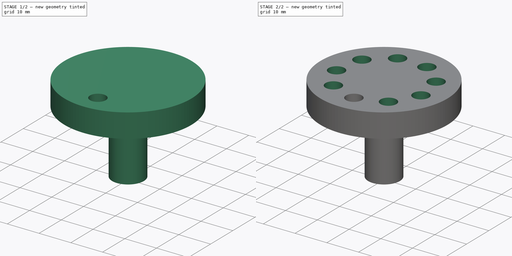
[diagram: build sequence overview — one tinted view per stage of 2, left to right]
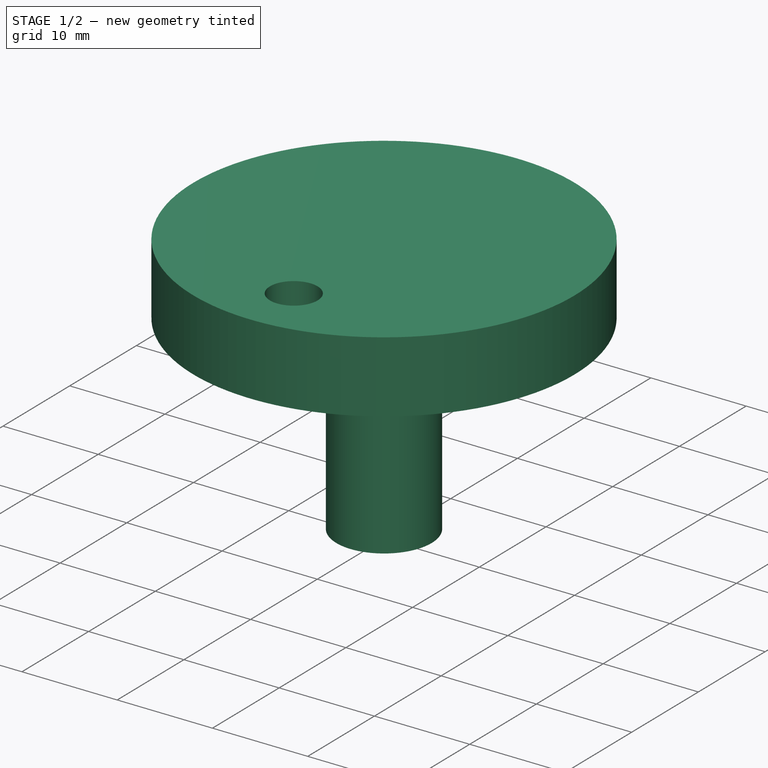
[diagram: stage 1 of 2 — iso view after this stage's code; geometry added in this stage tinted green]
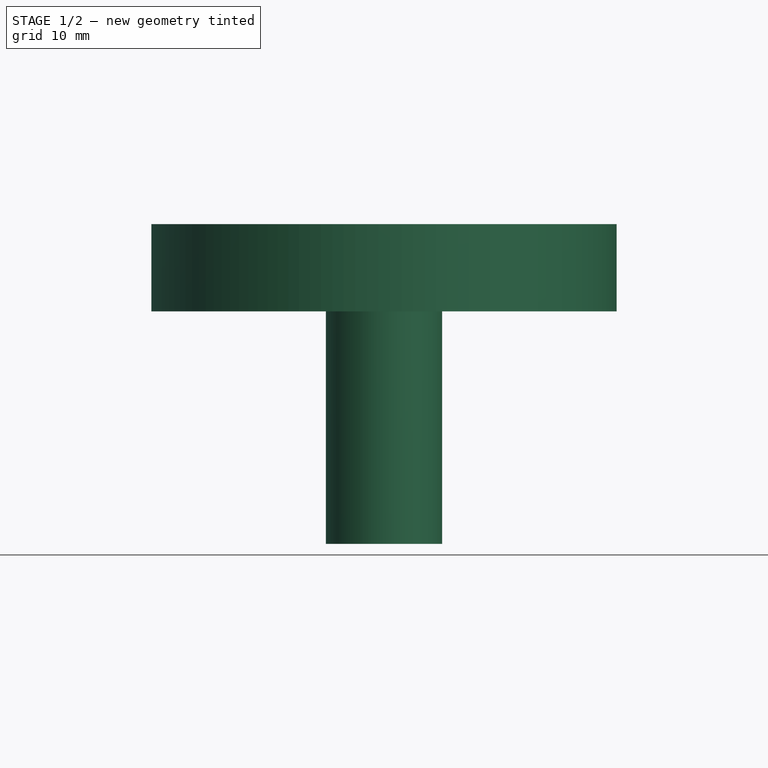
[diagram: stage 1 of 2 — front view after this stage's code; geometry added in this stage tinted green]
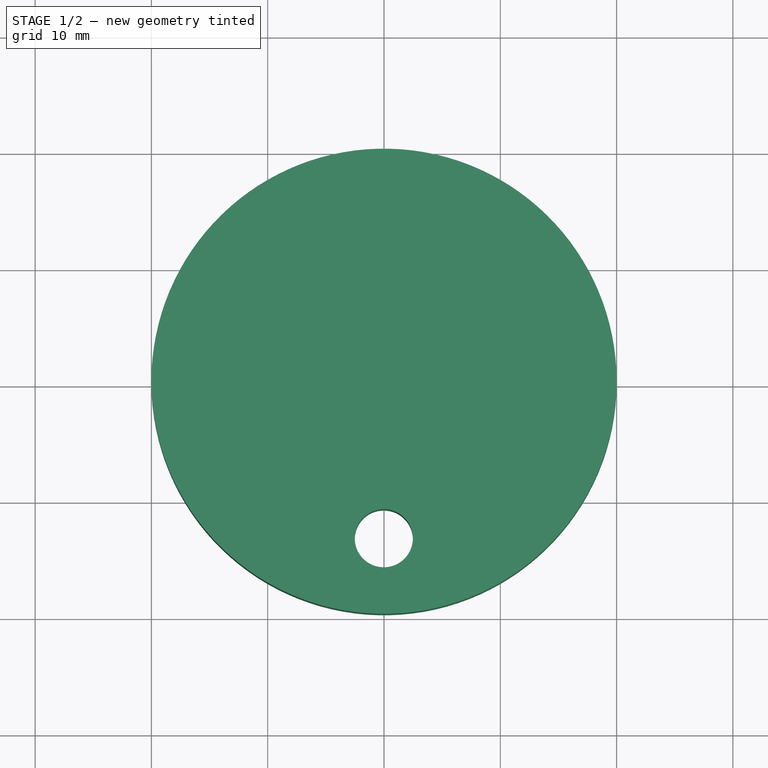
[diagram: stage 1 of 2 — top view after this stage's code; geometry added in this stage tinted green]
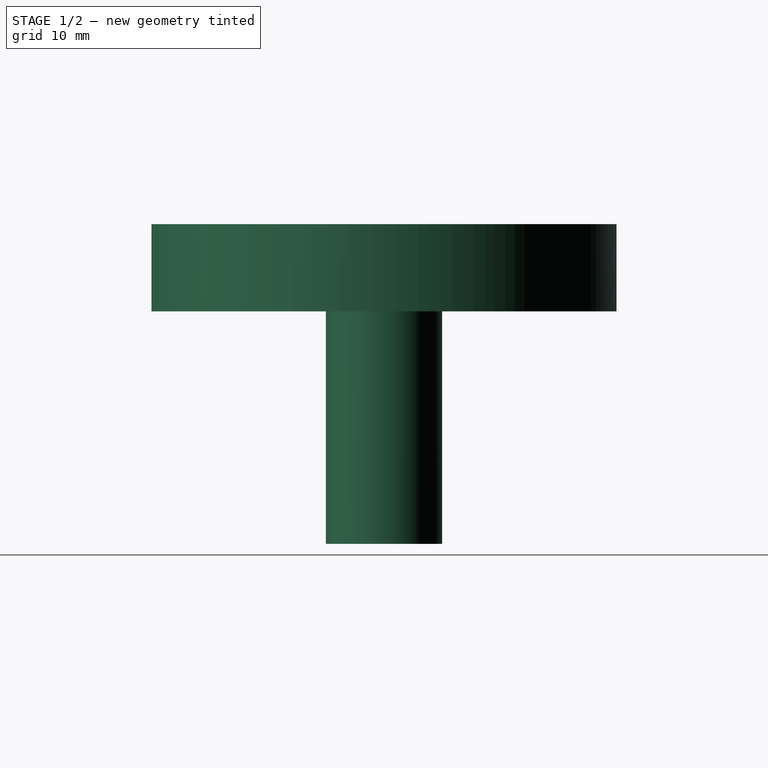
[diagram: stage 1 of 2 — right view after this stage's code; geometry added in this stage tinted green]
FCSTD DOCUMENT  (FreeCAD 0.18R16093 +53 (Git))
Label: tutorial4
License: All rights reserved
LicenseURL: http://en.wikipedia.org/wiki/All_rights_reserved
objects: Sketcher::SketchObject×2, Spreadsheet::Sheet×1, PartDesign::Revolution×1, PartDesign::Pocket×1, PartDesign::PolarPattern×1, PartDesign::Body×1, App::Part×1
note: 8 computed .brp shape members not serialized (recipe doc carries the construction recipe); baked Part::Feature solids carry a one-line shape summary decoded from their .brp

FEATURE [Sketcher::SketchObject] Sketch  label="Revolve001"
  MapMode = 5
  Placement = pos=(0,0,0) rot=(1,0,0;1.5708rad)
  Support = -> [XZ_Plane001]
  expr: Constraints[15] = Parameters.bottom_radius
  expr: Constraints[14] = Parameters.top_height
  expr: Constraints[12] = Parameters.bottom_height
  expr: Constraints[4] = Parameters.top_radius
  sketch-geometry (6):
    g0: LineSegment StartX=0 StartY=0 StartZ=0 EndX=5 EndY=0 EndZ=0
    g1: LineSegment StartX=5 StartY=0 StartZ=0 EndX=5 EndY=20 EndZ=0
    g2: LineSegment StartX=5 StartY=20 StartZ=0 EndX=20 EndY=20 EndZ=0
    g3: LineSegment StartX=20 StartY=20 StartZ=0 EndX=20 EndY=27.5 EndZ=0
    g4: LineSegment StartX=20 StartY=27.5 StartZ=0 EndX=0 EndY=27.5 EndZ=0
    g5: LineSegment StartX=0 StartY=27.5 StartZ=0 EndX=0 EndY=0 EndZ=0
  constraints (17):
    c: Coincident(g1,g2)
    c: Coincident(g2,g3)
    c: Coincident(g3,g4)
    c: Coincident(g4,g5)
    c: Distance(g4) = 20
    c: Vertical(g5)
    c: Vertical(g1)
    c: Horizontal(g0)
    c: Horizontal(g4)
    c: Vertical(g3)
    c: Coincident(g5,g-1)
    c: Coincident(g0,g5)
    c: Distance(g1) = 20
    c: Horizontal(g2)
    c: Distance(g3) = 7.5
    c: Distance(g0) = 5
    c: Coincident(g0,g1)
FEATURE [Spreadsheet::Sheet] Spreadsheet  label="Parameters"
  cells = A1=top_radius; B1(top_radius)=20; A2=bottom_radius; B2(bottom_radius)=5; A3=top_height; B3(top_height)=7.5; A4=bottom_height; B4(bottom_height)=20; A5=hole_diameter; B5(hole_diameter)=2.5; A6=hole_position; B6(hole_position)=13.5
FEATURE [PartDesign::Revolution] Revolution
  Angle = 360
  Axis = (0,2e-16,1)
  Base = (0,0,0)
  Placement = pos=(0,0,0) rot=(1,0,0;1.5708rad)
  Profile = -> Sketch
  ReferenceAxis = -> Sketch [V_Axis]
  Reversed = true
FEATURE [Sketcher::SketchObject] Sketch001  label="Pattern"
  MapMode = 5
  Placement = pos=(0,1.83e-14,27.5) rot=(0,0,1;3.14159rad)
  Support = -> [Revolution]
  expr: Constraints[1] = Parameters.hole_position
  expr: Constraints[0] = Parameters.hole_diameter
  sketch-geometry (1):
    g0: Circle CenterX=0.0176169 CenterY=13.5 CenterZ=0 NormalX=0 NormalY=0 NormalZ=1 AngleXU=0 Radius=2.5
  constraints (2):
    c: Radius(g0) = 2.5
    c: Distance(g-1,g0) = 13.5
FEATURE [PartDesign::Pocket] Pocket
  BaseFeature = -> Revolution
  Length = 0
  Length2 = 100
  Placement = pos=(0,0,0) rot=(1,0,0;1.5708rad)
  Profile = -> Sketch001
  Type = 3
  UpToFace = -> Revolution [Face3]
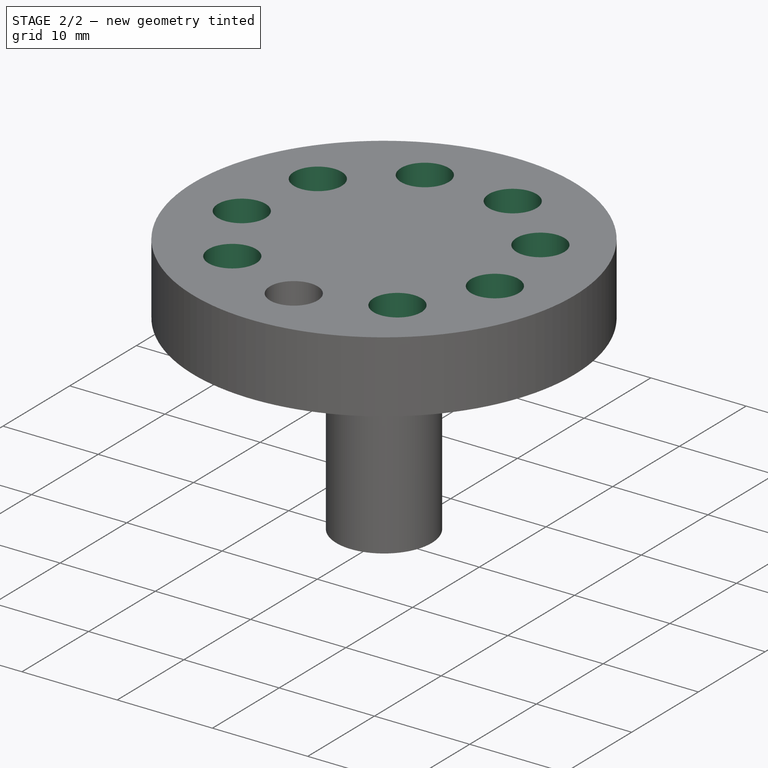
[diagram: stage 2 of 2 — iso view after this stage's code; geometry added in this stage tinted green]
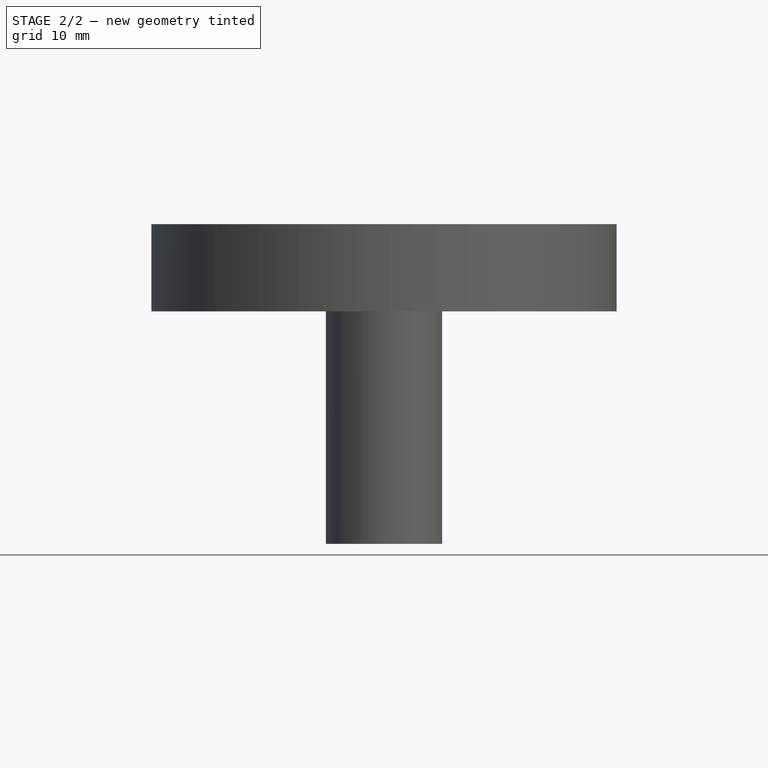
[diagram: stage 2 of 2 — front view after this stage's code; geometry added in this stage tinted green]
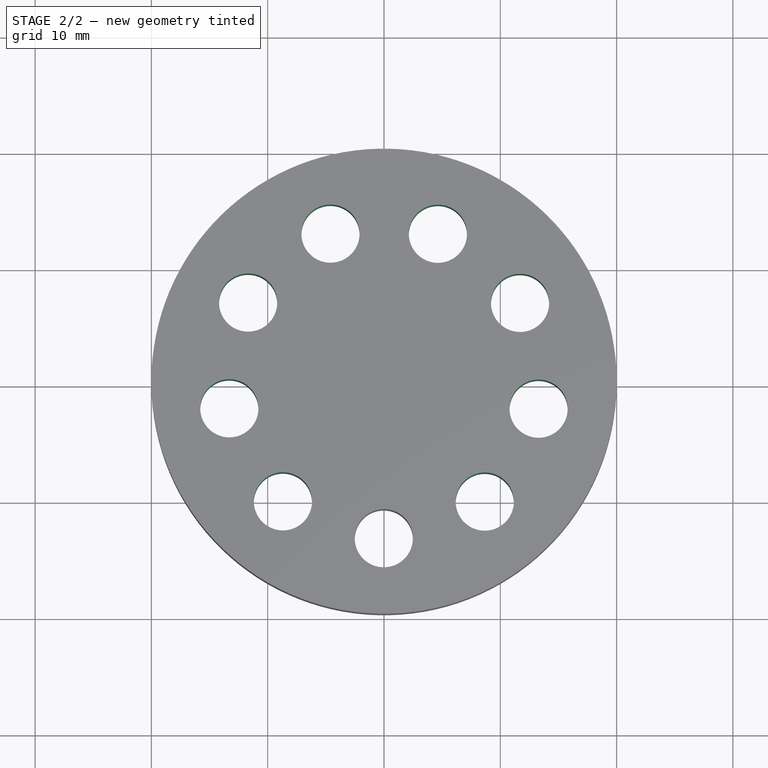
[diagram: stage 2 of 2 — top view after this stage's code; geometry added in this stage tinted green]
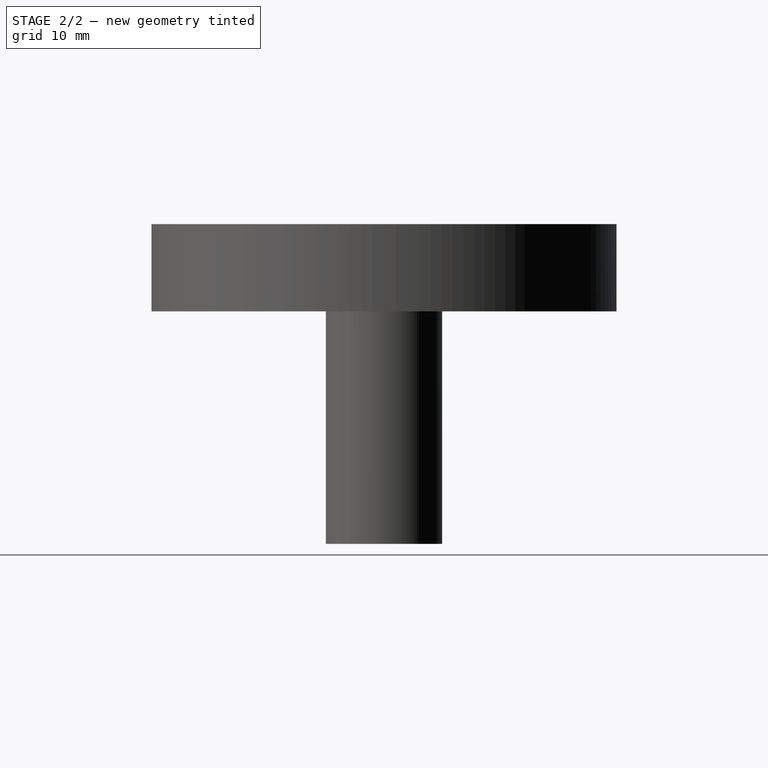
[diagram: stage 2 of 2 — right view after this stage's code; geometry added in this stage tinted green]
FEATURE [PartDesign::PolarPattern] PolarPattern
  Angle = 360
  Axis = -> Sketch001 [N_Axis]
  BaseFeature = -> Pocket
  Occurrences = 9
  Originals = -> [Pocket]
  Placement = pos=(0,0,0) rot=(1,0,0;1.5708rad)
FEATURE [PartDesign::Body] Body
  Group = -> [Sketch,Revolution,Sketch001,Pocket,PolarPattern]
  Origin = -> Origin001
  Tip = -> PolarPattern
FEATURE [App::Part] Part  label="Revolve"
  Group = -> [Body]
  Origin = -> Origin
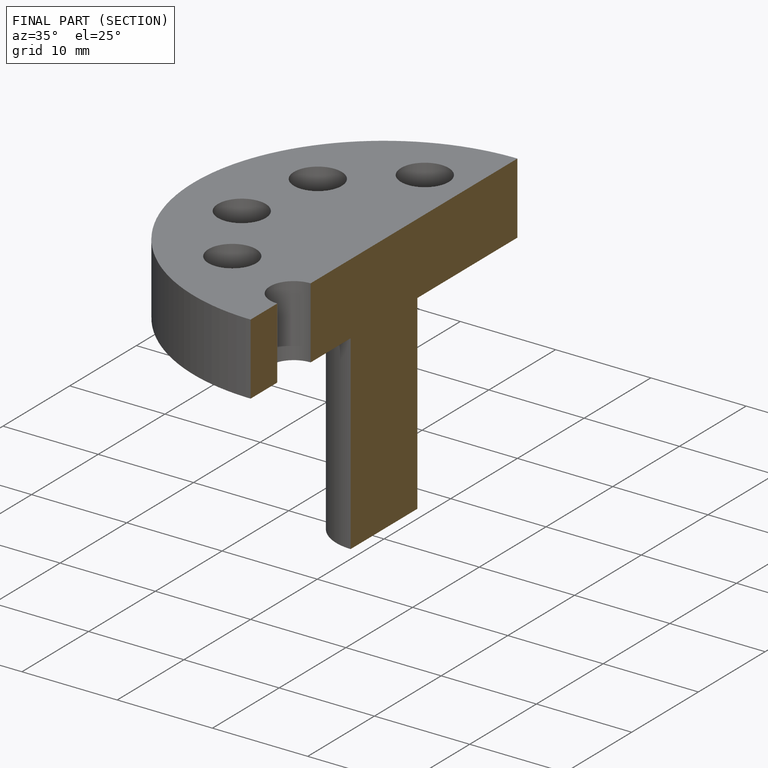
[diagram: finished part — half-section view (interior)]
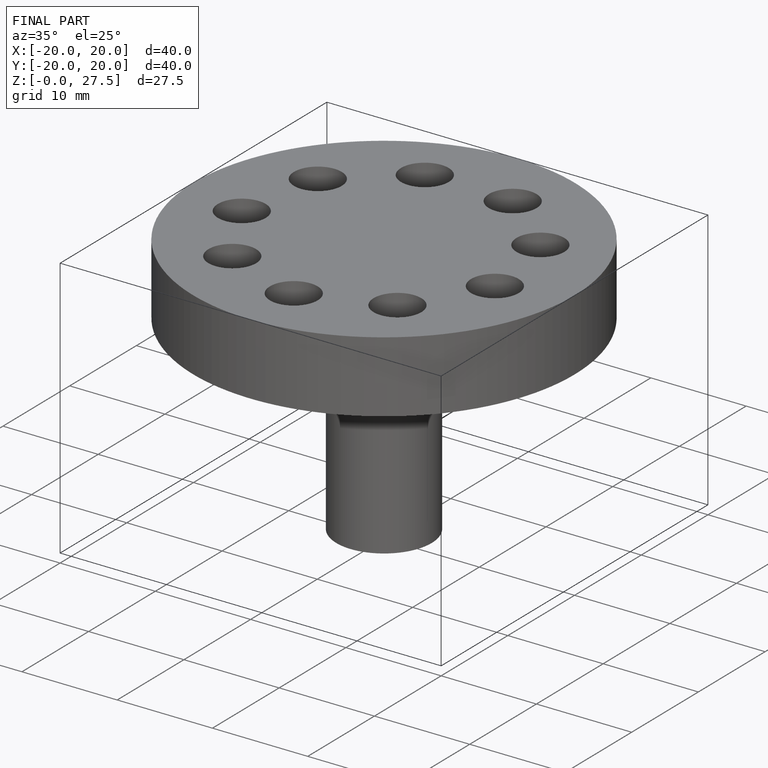
[diagram: finished part — iso view with bounding-box wireframe]
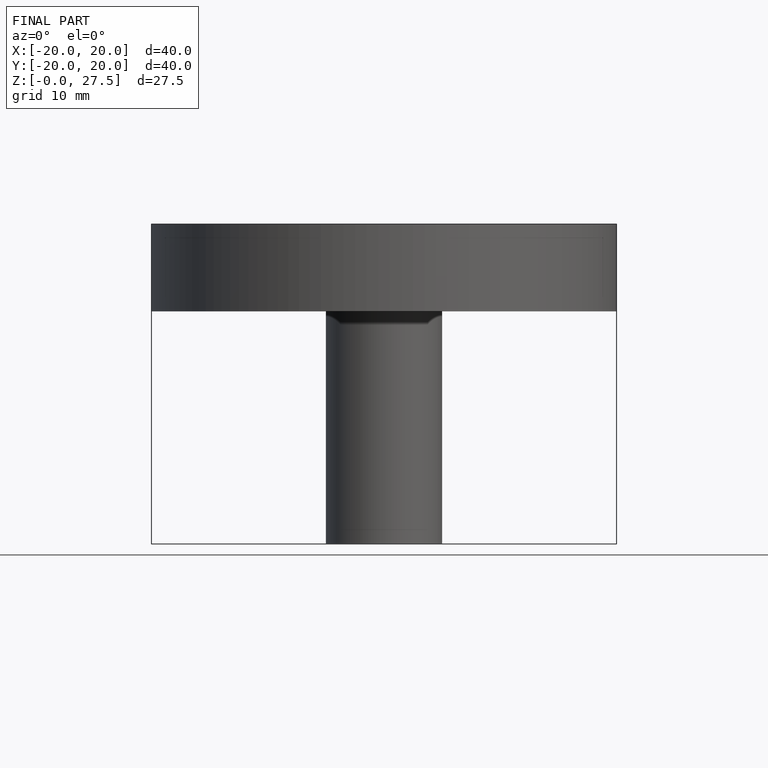
[diagram: finished part — front view with bounding-box wireframe]
